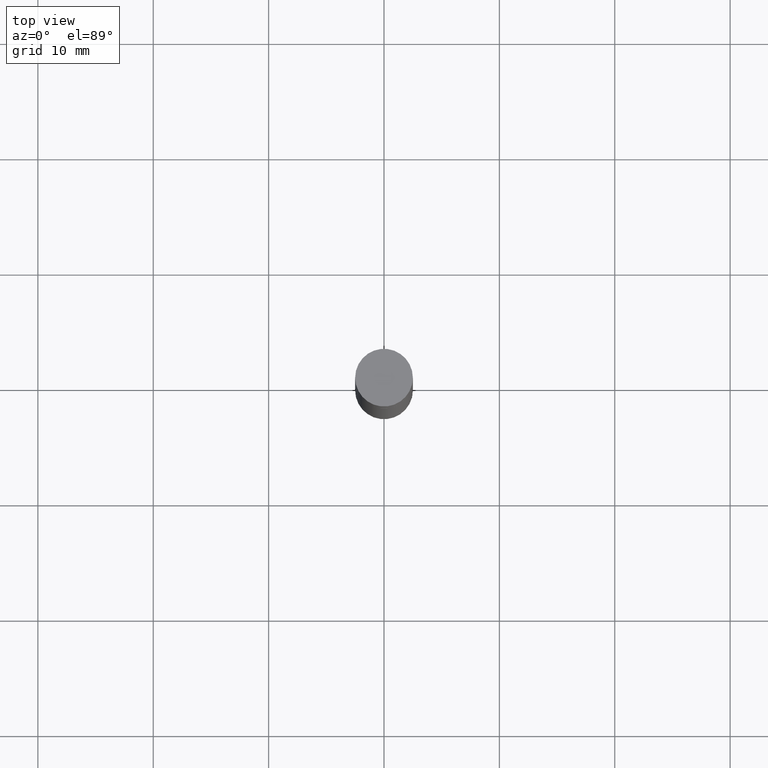
[diagram: clean part render]
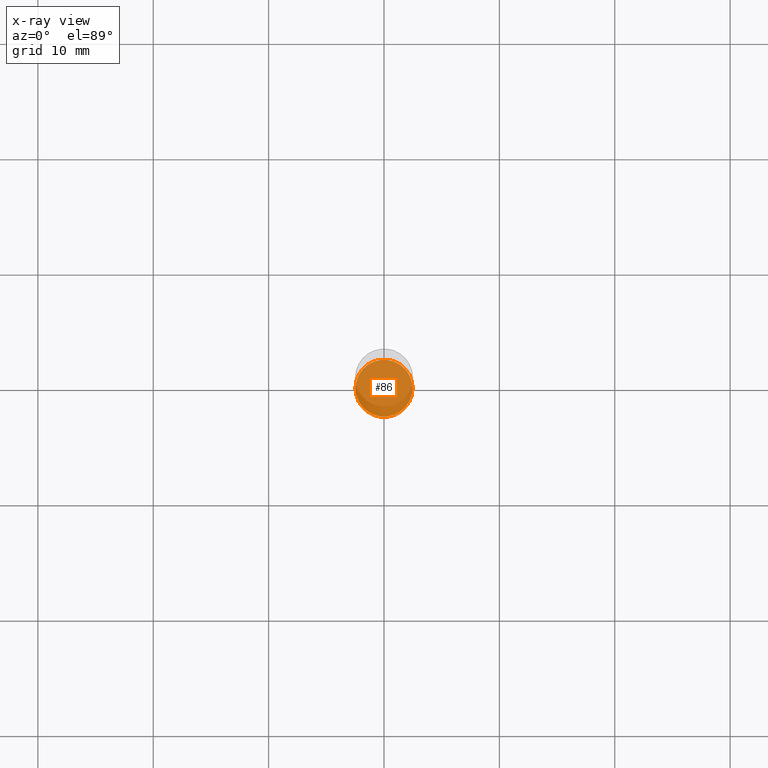
[diagram: x-ray — body ghosted, one internal face saturated and labeled with its STEP entity id]
A machine part, top view, then the same camera in x-ray: the body is ghosted and one INTERNAL B-rep face — a face not visible from any outside direction — is saturated and labeled: STEP entity #86.
In plain terms, the highlighted planar face has unit normal (-0, 0, 1).
Its self-contained STEP definition (entity closure, byte-faithful):
#65 = PLANE ( 'NONE',  #555 ) ;
#71 = FACE_OUTER_BOUND ( 'NONE', #412, .T. ) ;
#75 = VERTEX_POINT ( 'NONE', #116 ) ;
#86 = ADVANCED_FACE ( 'NONE', ( #71 ), #65, .F. ) ;
#100 = DIRECTION ( 'NONE',  ( -2.445468806185136597E-29, 3.491481338843145583E-15, 1.000000000000000000 ) ) ;
#116 = CARTESIAN_POINT ( 'NONE',  ( -0.09744999999999999496, -6.587602611283669490E-15, -2.086600000000000232 ) ) ;
#138 = VERTEX_POINT ( 'NONE', #632 ) ;
#154 = CARTESIAN_POINT ( 'NONE',  ( 5.102715210985907397E-29, -7.285324961630108994E-15, -2.086600000000000232 ) ) ;
#155 = EDGE_CURVE ( 'NONE', #75, #138, #521, .T. ) ;
#230 = DIRECTION ( 'NONE',  ( 1.000000000000000000, -6.982962677686264344E-15, 0.000000000000000000 ) ) ;
#269 = CARTESIAN_POINT ( 'NONE',  ( 5.102715210985907397E-29, -7.285324961630108994E-15, -2.086600000000000232 ) ) ;
#286 = AXIS2_PLACEMENT_3D ( 'NONE', #154, #100, #307 ) ;
#307 = DIRECTION ( 'NONE',  ( 1.000000000000000000, -6.982962677686264344E-15, 0.000000000000000000 ) ) ;
#347 = EDGE_CURVE ( 'NONE', #138, #75, #660, .T. ) ;
#412 = EDGE_LOOP ( 'NONE', ( #548, #608 ) ) ;
#431 = DIRECTION ( 'NONE',  ( -2.438088387897960049E-29, 3.491481338843145188E-15, 1.000000000000000000 ) ) ;
#521 = CIRCLE ( 'NONE', #618, 0.09744999999999999496 ) ;
#548 = ORIENTED_EDGE ( 'NONE', *, *, #347, .F. ) ;
#555 = AXIS2_PLACEMENT_3D ( 'NONE', #269, #431, #584 ) ;
#584 = DIRECTION ( 'NONE',  ( 1.000000000000000000, -6.982962677686265922E-15, 4.876176775795935793E-29 ) ) ;
#600 = DIRECTION ( 'NONE',  ( -2.445468806185136597E-29, 3.491481338843145583E-15, 1.000000000000000000 ) ) ;
#608 = ORIENTED_EDGE ( 'NONE', *, *, #155, .F. ) ;
#609 = CARTESIAN_POINT ( 'NONE',  ( 5.102715210985907397E-29, -7.285324961630108994E-15, -2.086600000000000232 ) ) ;
#618 = AXIS2_PLACEMENT_3D ( 'NONE', #609, #600, #230 ) ;
#632 = CARTESIAN_POINT ( 'NONE',  ( 0.09744999999999999496, -7.965814674570635540E-15, -2.086600000000000232 ) ) ;
#660 = CIRCLE ( 'NONE', #286, 0.09744999999999999496 ) ;